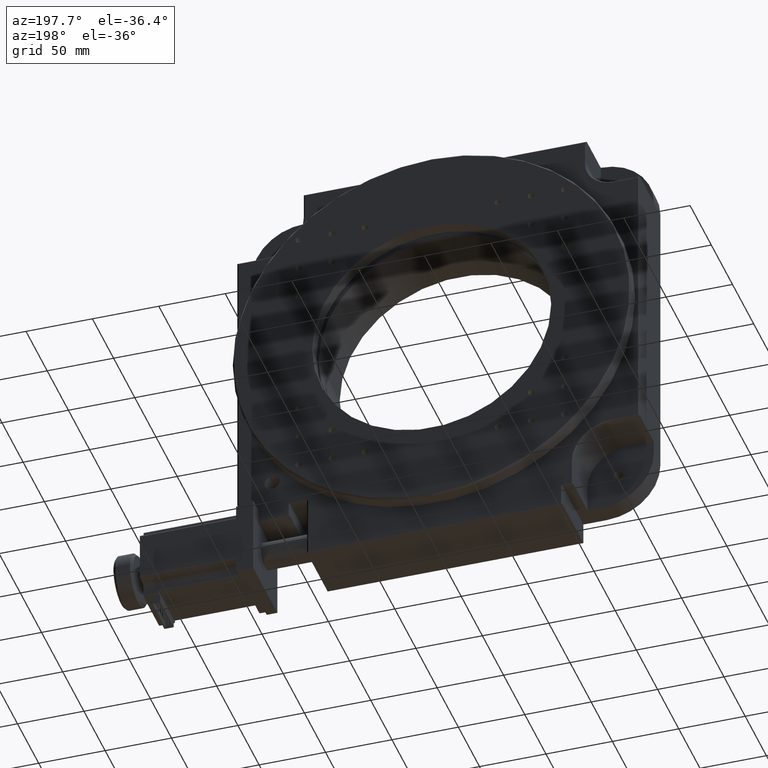
[diagram: clean part render]
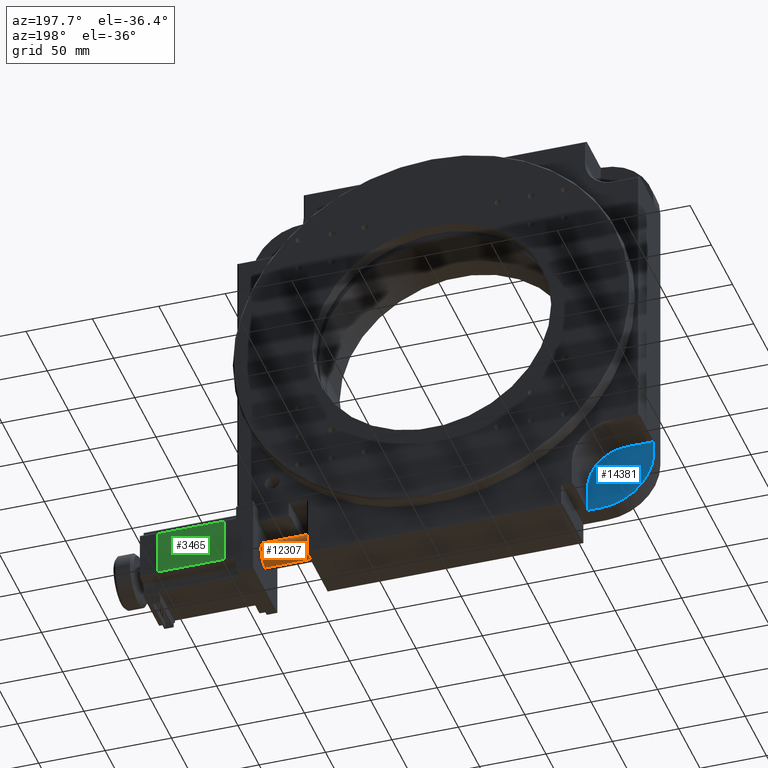
[diagram: same view with three faces highlighted in distinct colors, each labeled with its STEP entity id]
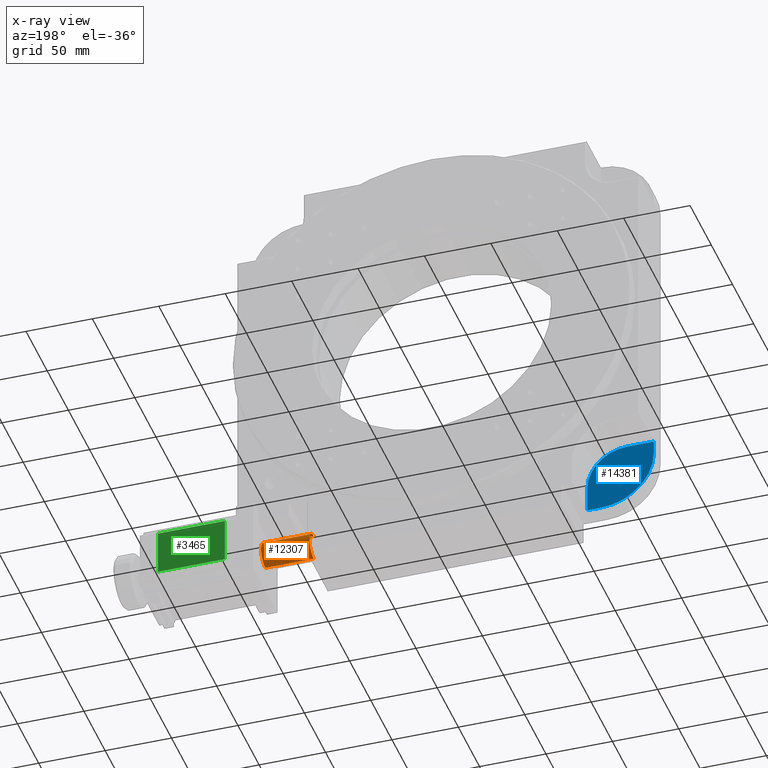
[diagram: x-ray of the same camera — body ghosted, the three highlighted faces saturated]
A machine part, auxiliary view with three faces highlighted in distinct colors.
The next image is the same camera in x-ray (body ghosted, the three faces saturated) — at least one of them is partly hidden behind the body in this view.
Their STEP definitions:

[orange] entity #12307 — the highlighted cylindrical surface (edge-blend (fillet) strip) has radius 10 mm, axis along (1, -0, -0).
#229 = DIRECTION ( 'NONE',  ( 1.000000000000000000, -1.502143935577762900E-016, -3.654484122724473900E-016 ) ) ;
#1234 = VECTOR ( 'NONE', #11129, 1000.000000000000000 ) ;
#1517 = AXIS2_PLACEMENT_3D ( 'NONE', #14853, #12636, #8851 ) ;
#1743 = AXIS2_PLACEMENT_3D ( 'NONE', #10966, #229, #2819 ) ;
#2042 = CIRCLE ( 'NONE', #1743, 10.00000000000000900 ) ;
#2211 = CARTESIAN_POINT ( 'NONE',  ( 286.9999999999998300, 32.99999999999995700, -313.4999999999997700 ) ) ;
#2223 = CYLINDRICAL_SURFACE ( 'NONE', #1517, 10.00000000000000900 ) ;
#2311 = EDGE_LOOP ( 'NONE', ( #10691, #4099, #13797, #12782 ) ) ;
#2819 = DIRECTION ( 'NONE',  ( 0.0000000000000000000, 0.0000000000000000000, -1.000000000000000000 ) ) ;
#3868 = VERTEX_POINT ( 'NONE', #2211 ) ;
#4099 = ORIENTED_EDGE ( 'NONE', *, *, #13442, .T. ) ;
#4394 = LINE ( 'NONE', #9954, #1234 ) ;
#5210 = EDGE_CURVE ( 'NONE', #13713, #3868, #8421, .T. ) ;
#5807 = CARTESIAN_POINT ( 'NONE',  ( 286.9999999999998300, 32.99999999999995700, -303.4999999999997700 ) ) ;
#6180 = CIRCLE ( 'NONE', #9928, 10.00000000000000900 ) ;
#6353 = DIRECTION ( 'NONE',  ( 1.000000000000000000, -1.502143935577762900E-016, -3.654484122724473900E-016 ) ) ;
#6509 = EDGE_CURVE ( 'NONE', #13713, #15093, #2042, .T. ) ;
#6963 = VECTOR ( 'NONE', #6353, 1000.000000000000000 ) ;
#7716 = CARTESIAN_POINT ( 'NONE',  ( 250.4999999999997700, 32.99999999999995700, -293.4999999999997200 ) ) ;
#8421 = LINE ( 'NONE', #14651, #6963 ) ;
#8851 = DIRECTION ( 'NONE',  ( 0.0000000000000000000, 0.0000000000000000000, -1.000000000000000000 ) ) ;
#8948 = EDGE_CURVE ( 'NONE', #14930, #3868, #6180, .T. ) ;
#9557 = CARTESIAN_POINT ( 'NONE',  ( 250.4999999999997700, 32.99999999999996400, -313.4999999999997200 ) ) ;
#9928 = AXIS2_PLACEMENT_3D ( 'NONE', #5807, #12960, #14089 ) ;
#9954 = CARTESIAN_POINT ( 'NONE',  ( 222.2157287525380400, 32.99999999999996400, -293.4999999999997200 ) ) ;
#10540 = FACE_OUTER_BOUND ( 'NONE', #2311, .T. ) ;
#10691 = ORIENTED_EDGE ( 'NONE', *, *, #6509, .T. ) ;
#10940 = CARTESIAN_POINT ( 'NONE',  ( 286.9999999999998300, 32.99999999999995700, -293.4999999999997700 ) ) ;
#10966 = CARTESIAN_POINT ( 'NONE',  ( 250.4999999999997700, 32.99999999999996400, -303.4999999999997200 ) ) ;
#11129 = DIRECTION ( 'NONE',  ( 1.000000000000000000, -1.502143935577762900E-016, -3.654484122724473900E-016 ) ) ;
#12307 = ADVANCED_FACE ( 'NONE', ( #10540 ), #2223, .T. ) ;
#12636 = DIRECTION ( 'NONE',  ( 1.000000000000000000, -1.502143935577762900E-016, -3.654484122724473900E-016 ) ) ;
#12782 = ORIENTED_EDGE ( 'NONE', *, *, #5210, .F. ) ;
#12960 = DIRECTION ( 'NONE',  ( -1.000000000000000000, 1.502143935577762900E-016, 3.654484122724473900E-016 ) ) ;
#13442 = EDGE_CURVE ( 'NONE', #15093, #14930, #4394, .T. ) ;
#13713 = VERTEX_POINT ( 'NONE', #9557 ) ;
#13797 = ORIENTED_EDGE ( 'NONE', *, *, #8948, .T. ) ;
#14089 = DIRECTION ( 'NONE',  ( 0.0000000000000000000, 0.0000000000000000000, -1.000000000000000000 ) ) ;
#14651 = CARTESIAN_POINT ( 'NONE',  ( 222.2157287525380400, 32.99999999999996400, -313.4999999999997200 ) ) ;
#14853 = CARTESIAN_POINT ( 'NONE',  ( 222.2157287525380400, 32.99999999999996400, -303.4999999999997200 ) ) ;
#14930 = VERTEX_POINT ( 'NONE', #10940 ) ;
#15093 = VERTEX_POINT ( 'NONE', #7716 ) ;

[blue] entity #14381 — the highlighted planar face has unit normal (0, 1, 0).
#86 = AXIS2_PLACEMENT_3D ( 'NONE', #5523, #11255, #1800 ) ;
#98 = EDGE_CURVE ( 'NONE', #5291, #5798, #14205, .T. ) ;
#126 = VERTEX_POINT ( 'NONE', #2335 ) ;
#696 = CIRCLE ( 'NONE', #13301, 3.500000000000003100 ) ;
#1096 = ORIENTED_EDGE ( 'NONE', *, *, #13028, .T. ) ;
#1130 = ORIENTED_EDGE ( 'NONE', *, *, #13981, .T. ) ;
#1292 = ORIENTED_EDGE ( 'NONE', *, *, #7707, .T. ) ;
#1298 = CARTESIAN_POINT ( 'NONE',  ( 30.00000000000017800, 15.49999999999999600, -276.4999999999998900 ) ) ;
#1467 = PLANE ( 'NONE',  #2431 ) ;
#1800 = DIRECTION ( 'NONE',  ( 1.000000000000000000, 0.0000000000000000000, 0.0000000000000000000 ) ) ;
#2133 = CIRCLE ( 'NONE', #86, 3.500000000000003100 ) ;
#2162 = VECTOR ( 'NONE', #4495, 1000.000000000000000 ) ;
#2335 = CARTESIAN_POINT ( 'NONE',  ( 40.00000000000016300, 15.49999999999999500, -302.9999999999999400 ) ) ;
#2396 = CARTESIAN_POINT ( 'NONE',  ( 20.00000000000015600, 15.49999999999999600, -282.9999999999998900 ) ) ;
#2431 = AXIS2_PLACEMENT_3D ( 'NONE', #9987, #3375, #15249 ) ;
#3204 = VECTOR ( 'NONE', #5691, 1000.000000000000000 ) ;
#3375 = DIRECTION ( 'NONE',  ( 1.502143935577754100E-016, 1.000000000000000000, 5.220704160324242800E-032 ) ) ;
#3699 = LINE ( 'NONE', #14549, #4271 ) ;
#3817 = DIRECTION ( 'NONE',  ( 1.000000000000000000, -1.301042606982606100E-016, -1.387778780781446500E-015 ) ) ;
#3975 = VECTOR ( 'NONE', #14735, 1000.000000000000000 ) ;
#4252 = ORIENTED_EDGE ( 'NONE', *, *, #8119, .F. ) ;
#4271 = VECTOR ( 'NONE', #9795, 1000.000000000000000 ) ;
#4302 = CARTESIAN_POINT ( 'NONE',  ( 1.665334536937734800E-013, 15.50000000000000000, -262.9999999999999400 ) ) ;
#4495 = DIRECTION ( 'NONE',  ( 9.714451465470121000E-017, 3.761453724692206000E-032, -1.000000000000000000 ) ) ;
#4858 = FACE_BOUND ( 'NONE', #10084, .T. ) ;
#5291 = VERTEX_POINT ( 'NONE', #6456 ) ;
#5331 = CARTESIAN_POINT ( 'NONE',  ( 50.00000000000014200, 15.49999999999999300, -302.9999999999998300 ) ) ;
#5523 = CARTESIAN_POINT ( 'NONE',  ( 26.50000000000017800, 15.49999999999999600, -276.4999999999998900 ) ) ;
#5600 = AXIS2_PLACEMENT_3D ( 'NONE', #2396, #11875, #8404 ) ;
#5621 = DIRECTION ( 'NONE',  ( 1.000000000000000000, 0.0000000000000000000, 0.0000000000000000000 ) ) ;
#5691 = DIRECTION ( 'NONE',  ( -1.027260349467331500E-017, -6.886435630069420400E-033, 1.000000000000000000 ) ) ;
#5798 = VERTEX_POINT ( 'NONE', #9868 ) ;
#5869 = ORIENTED_EDGE ( 'NONE', *, *, #12939, .T. ) ;
#6343 = VERTEX_POINT ( 'NONE', #5331 ) ;
#6355 = CIRCLE ( 'NONE', #9592, 39.99999999999997900 ) ;
#6456 = CARTESIAN_POINT ( 'NONE',  ( 20.00000000000009900, 15.49999999999999600, -253.0000000000000000 ) ) ;
#6534 = LINE ( 'NONE', #8949, #3975 ) ;
#7707 = EDGE_CURVE ( 'NONE', #7807, #10139, #2133, .T. ) ;
#7807 = VERTEX_POINT ( 'NONE', #12625 ) ;
#8019 = CARTESIAN_POINT ( 'NONE',  ( 50.00000000000014200, 15.49999999999999300, -282.9999999999998900 ) ) ;
#8119 = EDGE_CURVE ( 'NONE', #12868, #126, #6355, .T. ) ;
#8389 = CARTESIAN_POINT ( 'NONE',  ( 1.665334536937734800E-013, 15.50000000000000000, -253.0000000000000000 ) ) ;
#8404 = DIRECTION ( 'NONE',  ( 1.000000000000000000, -1.734723475976810300E-016, 0.0000000000000000000 ) ) ;
#8408 = DIRECTION ( 'NONE',  ( -1.502143935577754100E-016, -1.000000000000000000, 3.534798453467996800E-032 ) ) ;
#8949 = CARTESIAN_POINT ( 'NONE',  ( 20.00000000000015600, 15.49999999999999600, -253.0000000000000000 ) ) ;
#9214 = LINE ( 'NONE', #15167, #3204 ) ;
#9217 = CARTESIAN_POINT ( 'NONE',  ( 26.50000000000017800, 15.49999999999999600, -276.4999999999998900 ) ) ;
#9243 = ORIENTED_EDGE ( 'NONE', *, *, #98, .T. ) ;
#9592 = AXIS2_PLACEMENT_3D ( 'NONE', #9738, #8408, #3817 ) ;
#9738 = CARTESIAN_POINT ( 'NONE',  ( 40.00000000000013500, 15.49999999999999500, -262.9999999999998900 ) ) ;
#9795 = DIRECTION ( 'NONE',  ( -1.000000000000000000, 1.502143935577759200E-016, -5.756889218207167900E-016 ) ) ;
#9868 = CARTESIAN_POINT ( 'NONE',  ( 50.00000000000014200, 15.49999999999999300, -282.9999999999999400 ) ) ;
#9987 = CARTESIAN_POINT ( 'NONE',  ( 20.00000000000015600, 15.49999999999999600, -282.9999999999998900 ) ) ;
#10084 = EDGE_LOOP ( 'NONE', ( #5869, #1292 ) ) ;
#10139 = VERTEX_POINT ( 'NONE', #1298 ) ;
#10984 = EDGE_CURVE ( 'NONE', #6343, #126, #3699, .T. ) ;
#11255 = DIRECTION ( 'NONE',  ( -1.502143935577754100E-016, -1.000000000000000000, 3.534798453467996800E-032 ) ) ;
#11617 = LINE ( 'NONE', #8019, #2162 ) ;
#11875 = DIRECTION ( 'NONE',  ( 1.502143935577754100E-016, 1.000000000000000000, -3.534798453467996800E-032 ) ) ;
#11892 = EDGE_CURVE ( 'NONE', #12868, #14933, #9214, .T. ) ;
#12625 = CARTESIAN_POINT ( 'NONE',  ( 23.00000000000017400, 15.49999999999999600, -276.4999999999998900 ) ) ;
#12868 = VERTEX_POINT ( 'NONE', #4302 ) ;
#12939 = EDGE_CURVE ( 'NONE', #10139, #7807, #696, .T. ) ;
#13028 = EDGE_CURVE ( 'NONE', #5798, #6343, #11617, .T. ) ;
#13075 = EDGE_LOOP ( 'NONE', ( #4252, #13938, #1130, #9243, #1096, #15340 ) ) ;
#13301 = AXIS2_PLACEMENT_3D ( 'NONE', #9217, #13935, #5621 ) ;
#13935 = DIRECTION ( 'NONE',  ( -1.502143935577754100E-016, -1.000000000000000000, 3.534798453467996800E-032 ) ) ;
#13938 = ORIENTED_EDGE ( 'NONE', *, *, #11892, .T. ) ;
#13981 = EDGE_CURVE ( 'NONE', #14933, #5291, #6534, .T. ) ;
#14205 = CIRCLE ( 'NONE', #5600, 29.99999999999994300 ) ;
#14381 = ADVANCED_FACE ( 'NONE', ( #14663, #4858 ), #1467, .T. ) ;
#14549 = CARTESIAN_POINT ( 'NONE',  ( 2.220446049250313100E-013, 15.50000000000000000, -302.9999999999999400 ) ) ;
#14663 = FACE_OUTER_BOUND ( 'NONE', #13075, .T. ) ;
#14735 = DIRECTION ( 'NONE',  ( 1.000000000000000000, -1.502143935577754100E-016, 9.714451465470121000E-017 ) ) ;
#14933 = VERTEX_POINT ( 'NONE', #8389 ) ;
#15167 = CARTESIAN_POINT ( 'NONE',  ( 2.220446049250313100E-013, 15.50000000000000000, -319.4999999999999400 ) ) ;
#15249 = DIRECTION ( 'NONE',  ( 1.000000000000000000, -1.502143935577754100E-016, 9.714451465470121000E-017 ) ) ;
#15340 = ORIENTED_EDGE ( 'NONE', *, *, #10984, .T. ) ;

[green] entity #3465 — the highlighted planar face has unit normal (0, -1, 0).
#1296 = ORIENTED_EDGE ( 'NONE', *, *, #5880, .F. ) ;
#1374 = CARTESIAN_POINT ( 'NONE',  ( 372.4999999999998900, 60.99999999999990100, -286.4999999999998900 ) ) ;
#1699 = EDGE_CURVE ( 'NONE', #14442, #2723, #11243, .T. ) ;
#1995 = EDGE_CURVE ( 'NONE', #8031, #11808, #2363, .T. ) ;
#2363 = LINE ( 'NONE', #4530, #5883 ) ;
#2531 = CARTESIAN_POINT ( 'NONE',  ( 358.9999999999998300, 60.99999999999985800, -286.4999999999998900 ) ) ;
#2711 = CARTESIAN_POINT ( 'NONE',  ( 308.4999999999999400, 60.99999999999985800, -320.4999999999998300 ) ) ;
#2723 = VERTEX_POINT ( 'NONE', #9599 ) ;
#2934 = DIRECTION ( 'NONE',  ( -7.164510030498537500E-016, -1.387241859817012800E-015, -1.000000000000000000 ) ) ;
#3465 = ADVANCED_FACE ( 'NONE', ( #14483 ), #6578, .F. ) ;
#4106 = LINE ( 'NONE', #12964, #9366 ) ;
#4292 = CARTESIAN_POINT ( 'NONE',  ( 372.4999999999998900, 60.99999999999985800, -320.4999999999999400 ) ) ;
#4460 = EDGE_CURVE ( 'NONE', #14442, #11808, #4106, .T. ) ;
#4530 = CARTESIAN_POINT ( 'NONE',  ( 299.9999999999998300, 60.99999999999985800, -320.4999999999997700 ) ) ;
#5242 = AXIS2_PLACEMENT_3D ( 'NONE', #4292, #7598, #2934 ) ;
#5880 = EDGE_CURVE ( 'NONE', #2723, #8031, #9276, .T. ) ;
#5883 = VECTOR ( 'NONE', #6827, 1000.000000000000000 ) ;
#6315 = DIRECTION ( 'NONE',  ( -1.000000000000000000, -1.573888871122370800E-016, 7.164510030498539500E-016 ) ) ;
#6444 = ORIENTED_EDGE ( 'NONE', *, *, #4460, .T. ) ;
#6578 = PLANE ( 'NONE',  #5242 ) ;
#6827 = DIRECTION ( 'NONE',  ( 1.000000000000000000, 1.573888871122365400E-016, -1.107136283282465800E-015 ) ) ;
#7289 = VECTOR ( 'NONE', #12420, 1000.000000000000000 ) ;
#7598 = DIRECTION ( 'NONE',  ( 1.573888871122380900E-016, -1.000000000000000000, 1.387241859817012600E-015 ) ) ;
#8015 = EDGE_LOOP ( 'NONE', ( #6444, #10674, #1296, #14773 ) ) ;
#8031 = VERTEX_POINT ( 'NONE', #2711 ) ;
#9276 = LINE ( 'NONE', #11210, #7289 ) ;
#9366 = VECTOR ( 'NONE', #13014, 1000.000000000000000 ) ;
#9599 = CARTESIAN_POINT ( 'NONE',  ( 308.4999999999999400, 60.99999999999988600, -286.4999999999998300 ) ) ;
#10674 = ORIENTED_EDGE ( 'NONE', *, *, #1995, .F. ) ;
#11210 = CARTESIAN_POINT ( 'NONE',  ( 308.4999999999999400, 60.99999999999984400, -320.4999999999998900 ) ) ;
#11243 = LINE ( 'NONE', #1374, #14558 ) ;
#11808 = VERTEX_POINT ( 'NONE', #14865 ) ;
#12420 = DIRECTION ( 'NONE',  ( -7.164510030498537500E-016, -1.387241859817012800E-015, -1.000000000000000000 ) ) ;
#12964 = CARTESIAN_POINT ( 'NONE',  ( 358.9999999999997700, 60.99999999999984400, -286.4999999999998900 ) ) ;
#13014 = DIRECTION ( 'NONE',  ( -1.107136283282465800E-015, -2.775557561562892300E-016, -1.000000000000000000 ) ) ;
#14442 = VERTEX_POINT ( 'NONE', #2531 ) ;
#14483 = FACE_OUTER_BOUND ( 'NONE', #8015, .T. ) ;
#14558 = VECTOR ( 'NONE', #6315, 1000.000000000000000 ) ;
#14773 = ORIENTED_EDGE ( 'NONE', *, *, #1699, .F. ) ;
#14865 = CARTESIAN_POINT ( 'NONE',  ( 358.9999999999997700, 60.99999999999984400, -320.4999999999998900 ) ) ;